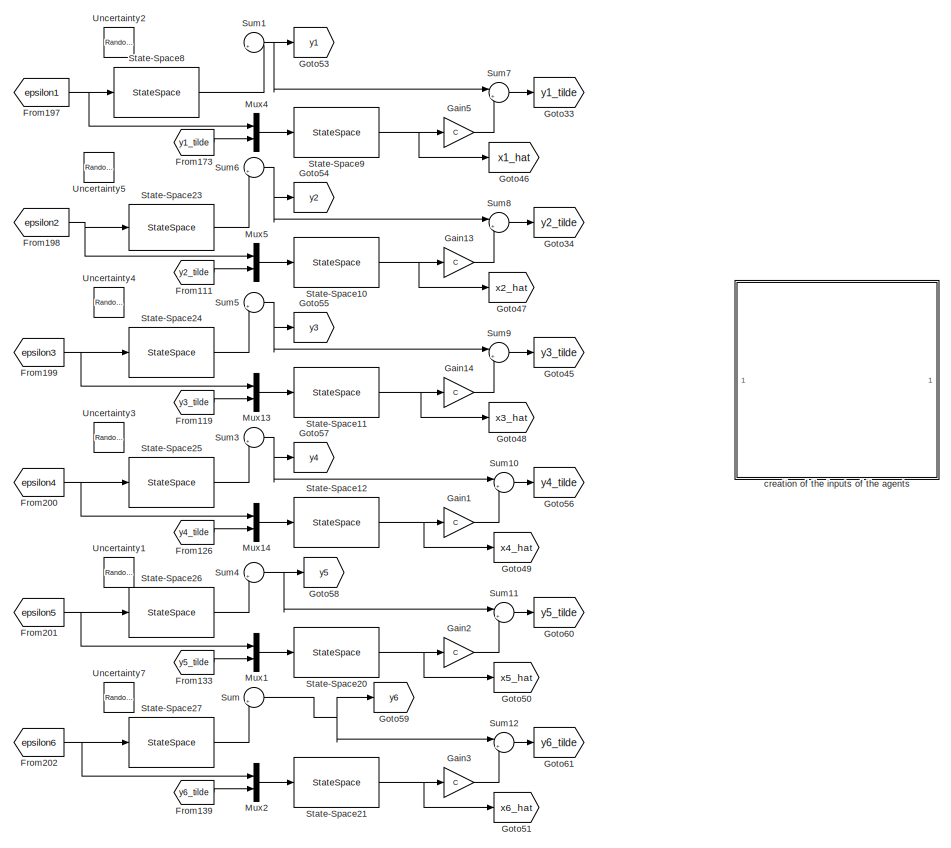
[diagram: root canvas - part 1/3, top center region]
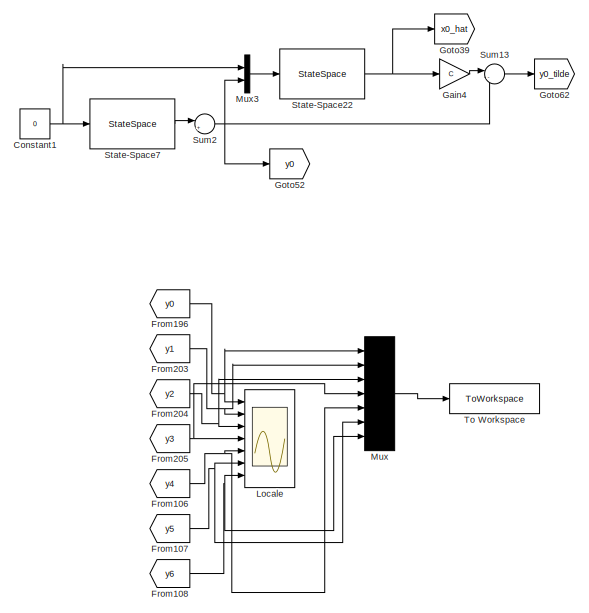
[diagram: root canvas - part 2/3, top left region]
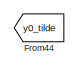
[diagram: root canvas - part 3/3, bottom right region]
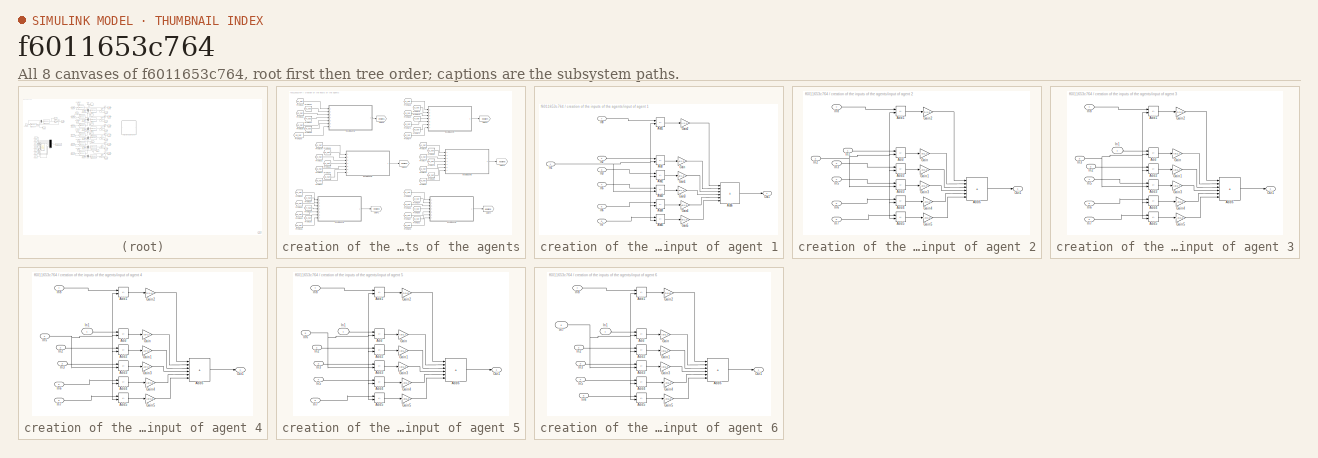
[diagram: thumbnail index - all 8 canvases of the model, root first then tree order]
MODEL slx_f6011653c764
KIND model
CONFIG AbsTol = auto
CONFIG EnableMultiTasking = off
CONFIG FixedStep = 0.0025
CONFIG MaxStep = auto
CONFIG MinStep = auto
CONFIG RelTol = 1e-3
CONFIG SampleTimeConstraint = Unconstrained
CONFIG SolverName = VariableStepAuto
CONFIG StartTime = 0.0
CONFIG StopTime = T_fin
BLOCK [Constant] Constant1
  Value = 0
BLOCK [From] From106
  GotoTag = y4
  TagVisibility = global
BLOCK [From] From107
  GotoTag = y5
  TagVisibility = global
BLOCK [From] From108
  GotoTag = y6
  TagVisibility = global
BLOCK [From] From111
  GotoTag = y2_tilde
  TagVisibility = global
BLOCK [From] From119
  GotoTag = y3_tilde
  TagVisibility = global
BLOCK [From] From126
  GotoTag = y4_tilde
  TagVisibility = global
BLOCK [From] From133
  GotoTag = y5_tilde
  TagVisibility = global
BLOCK [From] From139
  GotoTag = y6_tilde
  TagVisibility = global
BLOCK [From] From173
  GotoTag = y1_tilde
  TagVisibility = global
BLOCK [From] From196
  GotoTag = y0
  TagVisibility = global
BLOCK [From] From197
  GotoTag = epsilon1
  TagVisibility = global
BLOCK [From] From198
  GotoTag = epsilon2
  TagVisibility = global
BLOCK [From] From199
  GotoTag = epsilon3
  TagVisibility = global
BLOCK [From] From200
  GotoTag = epsilon4
  TagVisibility = global
BLOCK [From] From201
  GotoTag = epsilon5
  TagVisibility = global
BLOCK [From] From202
  GotoTag = epsilon6
  TagVisibility = global
BLOCK [From] From203
  GotoTag = y1
  TagVisibility = global
BLOCK [From] From204
  GotoTag = y2
  TagVisibility = global
BLOCK [From] From205
  GotoTag = y3
  TagVisibility = global
BLOCK [From] From44
  GotoTag = y0_tilde
  TagVisibility = global
BLOCK [Gain] Gain1
  Gain = C
  Multiplication = Matrix(K*u)
BLOCK [Gain] Gain13
  Gain = C
  Multiplication = Matrix(K*u)
BLOCK [Gain] Gain14
  Gain = C
  Multiplication = Matrix(K*u)
BLOCK [Gain] Gain2
  Gain = C
  Multiplication = Matrix(K*u)
BLOCK [Gain] Gain3
  Gain = C
  Multiplication = Matrix(K*u)
BLOCK [Gain] Gain4
  Gain = C
  Multiplication = Matrix(K*u)
BLOCK [Gain] Gain5
  Gain = C
  Multiplication = Matrix(K*u)
BLOCK [Goto] Goto33
  GotoTag = y1_tilde
  TagVisibility = global
BLOCK [Goto] Goto34
  GotoTag = y2_tilde
  TagVisibility = global
BLOCK [Goto] Goto39
  GotoTag = x0_hat
  TagVisibility = global
BLOCK [Goto] Goto45
  GotoTag = y3_tilde
  TagVisibility = global
BLOCK [Goto] Goto46
  GotoTag = x1_hat
  TagVisibility = global
BLOCK [Goto] Goto47
  GotoTag = x2_hat
  TagVisibility = global
BLOCK [Goto] Goto48
  GotoTag = x3_hat
  TagVisibility = global
BLOCK [Goto] Goto49
  GotoTag = x4_hat
  TagVisibility = global
BLOCK [Goto] Goto50
  GotoTag = x5_hat
  TagVisibility = global
BLOCK [Goto] Goto51
  GotoTag = x6_hat
  TagVisibility = global
BLOCK [Goto] Goto52
  GotoTag = y0
  TagVisibility = global
BLOCK [Goto] Goto53
  GotoTag = y1
  TagVisibility = global
BLOCK [Goto] Goto54
  GotoTag = y2
  TagVisibility = global
BLOCK [Goto] Goto55
  GotoTag = y3
  TagVisibility = global
BLOCK [Goto] Goto56
  GotoTag = y4_tilde
  TagVisibility = global
BLOCK [Goto] Goto57
  GotoTag = y4
  TagVisibility = global
BLOCK [Goto] Goto58
  GotoTag = y5
  TagVisibility = global
BLOCK [Goto] Goto59
  GotoTag = y6
  TagVisibility = global
BLOCK [Goto] Goto60
  GotoTag = y5_tilde
  TagVisibility = global
BLOCK [Goto] Goto61
  GotoTag = y6_tilde
  TagVisibility = global
BLOCK [Goto] Goto62
  GotoTag = y0_tilde
  TagVisibility = global
BLOCK [Scope] Locale
  Floating = off
  NumInputPorts = 7
  Ports = [7]
  ScopeSpecificationString = Simulink.scopes.TimeScopeBlockCfg('CurrentConfiguration', extmgr.ConfigurationSet(extmgr.Configuration('Core','General UI',true),extmgr.Configuration('Core','Source UI',true),extmgr.Configuration('Sources','WiredSimulink',true,'DataLoggingVariableName','ScopeData1'),extmgr.Configuration('Visuals','Time Domain',true,'SerializedDisplays',{struct('MinYLimReal','-3.08942','MaxYLimReal','7.80479','YLab...<+1676ch>
BLOCK [Mux] Mux
  DisplayOption = bar
  Inputs = 7
  Ports = [7, 1]
BLOCK [Mux] Mux1
  DisplayOption = bar
  Inputs = 2
  Ports = [2, 1]
BLOCK [Mux] Mux13
  DisplayOption = bar
  Inputs = 2
  Ports = [2, 1]
BLOCK [Mux] Mux14
  DisplayOption = bar
  Inputs = 2
  Ports = [2, 1]
BLOCK [Mux] Mux2
  DisplayOption = bar
  Inputs = 2
  Ports = [2, 1]
BLOCK [Mux] Mux3
  DisplayOption = bar
  Inputs = 2
  Ports = [2, 1]
BLOCK [Mux] Mux4
  DisplayOption = bar
  Inputs = 2
  Ports = [2, 1]
BLOCK [Mux] Mux5
  DisplayOption = bar
  Inputs = 2
  Ports = [2, 1]
BLOCK [StateSpace] State-Space10
  A = A
  B = [B*c*K -c*F2]
  C = eye(2)
  D = zeros(2,3)
  InitialCondition = zeros(1,2)
  Ports = [1, 1]
BLOCK [StateSpace] State-Space11
  A = A
  B = [B*c*K -c*F2]
  C = eye(2)
  D = zeros(2,3)
  InitialCondition = zeros(1,2)
  Ports = [1, 1]
BLOCK [StateSpace] State-Space12
  A = A
  B = [B*c*K -c*F2]
  C = eye(2)
  D = zeros(2,3)
  InitialCondition = zeros(1,2)
  Ports = [1, 1]
BLOCK [StateSpace] State-Space20
  A = A
  B = [B*c*K -c*F2]
  C = eye(2)
  D = zeros(2,3)
  InitialCondition = zeros(1,2)
  Ports = [1, 1]
BLOCK [StateSpace] State-Space21
  A = A
  B = [B*c*K -c*F2]
  C = eye(2)
  D = zeros(2,3)
  InitialCondition = zeros(1,2)
  Ports = [1, 1]
BLOCK [StateSpace] State-Space22
  A = A - L_leader*C
  B = [B L_leader]
  C = eye(2)
  D = zeros(2,2)
  InitialCondition = zeros(1,2)
  Ports = [1, 1]
BLOCK [StateSpace] State-Space23
  A = A
  B = B*c*K
  C = C
  D = D_
  InitialCondition = [0 2/800]'
  Ports = [1, 1]
BLOCK [StateSpace] State-Space24
  A = A
  B = B*c*K
  C = C
  D = D_
  InitialCondition = [-1/C(1) -1/800]
  Ports = [1, 1]
BLOCK [StateSpace] State-Space25
  A = A
  B = B*c*K
  C = C
  D = D_
  InitialCondition = [3/C(1) -3/800]'
  Ports = [1, 1]
BLOCK [StateSpace] State-Space26
  A = A
  B = B*c*K
  C = C
  D = D_
  InitialCondition = [2/C(1) 4/800]'
  Ports = [1, 1]
BLOCK [StateSpace] State-Space27
  A = A
  B = B*c*K
  C = C
  D = D_
  InitialCondition = [-2/C(1) 0]'
  Ports = [1, 1]
BLOCK [StateSpace] State-Space7
  A = A
  B = B
  C = C
  D = 0
  InitialCondition = X0
  Ports = [1, 1]
BLOCK [StateSpace] State-Space8
  A = A
  B = B*c*K
  C = C
  D = D_
  InitialCondition = [2/C(1) 1/800]'
  Ports = [1, 1]
BLOCK [StateSpace] State-Space9
  A = A
  B = [B*c*K -c*F2]
  C = eye(2)
  D = zeros(2,3)
  InitialCondition = zeros(1,2)
  Ports = [1, 1]
BLOCK [Sum] Sum
  Inputs = |++
  Ports = [2, 1]
BLOCK [Sum] Sum1
  Inputs = |++
  Ports = [2, 1]
BLOCK [Sum] Sum10
  Inputs = |+-
  Ports = [2, 1]
BLOCK [Sum] Sum11
  Inputs = |+-
  Ports = [2, 1]
BLOCK [Sum] Sum12
  Inputs = |+-
  Ports = [2, 1]
BLOCK [Sum] Sum13
  Inputs = |-+
  Ports = [2, 1]
BLOCK [Sum] Sum2
  Inputs = |++
  Ports = [2, 1]
BLOCK [Sum] Sum3
  Inputs = |++
  Ports = [2, 1]
BLOCK [Sum] Sum4
  Inputs = |++
  Ports = [2, 1]
BLOCK [Sum] Sum5
  Inputs = |++
  Ports = [2, 1]
BLOCK [Sum] Sum6
  Inputs = |++
  Ports = [2, 1]
BLOCK [Sum] Sum7
  Inputs = |+-
  Ports = [2, 1]
BLOCK [Sum] Sum8
  Inputs = |+-
  Ports = [2, 1]
BLOCK [Sum] Sum9
  Inputs = |+-
  Ports = [2, 1]
BLOCK [ToWorkspace] To Workspace
  FixptAsFi = on
  MaxDataPoints = inf
  Ports = [1]
  SampleTime = -1
  SaveFormat = Timeseries
  VariableName = local
BLOCK [RandomNumber] Uncertainty1
  Mean = zeros(1,1)
  NameLocation = top
  SampleTime = 0.1
  Seed = 1
  Variance = 0.1
BLOCK [RandomNumber] Uncertainty2
  NameLocation = top
  SampleTime = 0.2
  Seed = 2
BLOCK [RandomNumber] Uncertainty3
  Mean = zeros(1,1)
  NameLocation = top
  SampleTime = 0.1
  Seed = 3
  Variance = 0.7
BLOCK [RandomNumber] Uncertainty4
  Mean = zeros(1,1)
  NameLocation = top
  SampleTime = 0.1
  Seed = 7
  Variance = 0.2
BLOCK [RandomNumber] Uncertainty5
  Mean = zeros(1,1)
  NameLocation = top
  SampleTime = 0.1
  Seed = 7
  Variance = 0.5
BLOCK [RandomNumber] Uncertainty7
  Mean = zeros(1,1)
  NameLocation = top
  SampleTime = 0.1
  Seed = 3
  Variance = 0.4
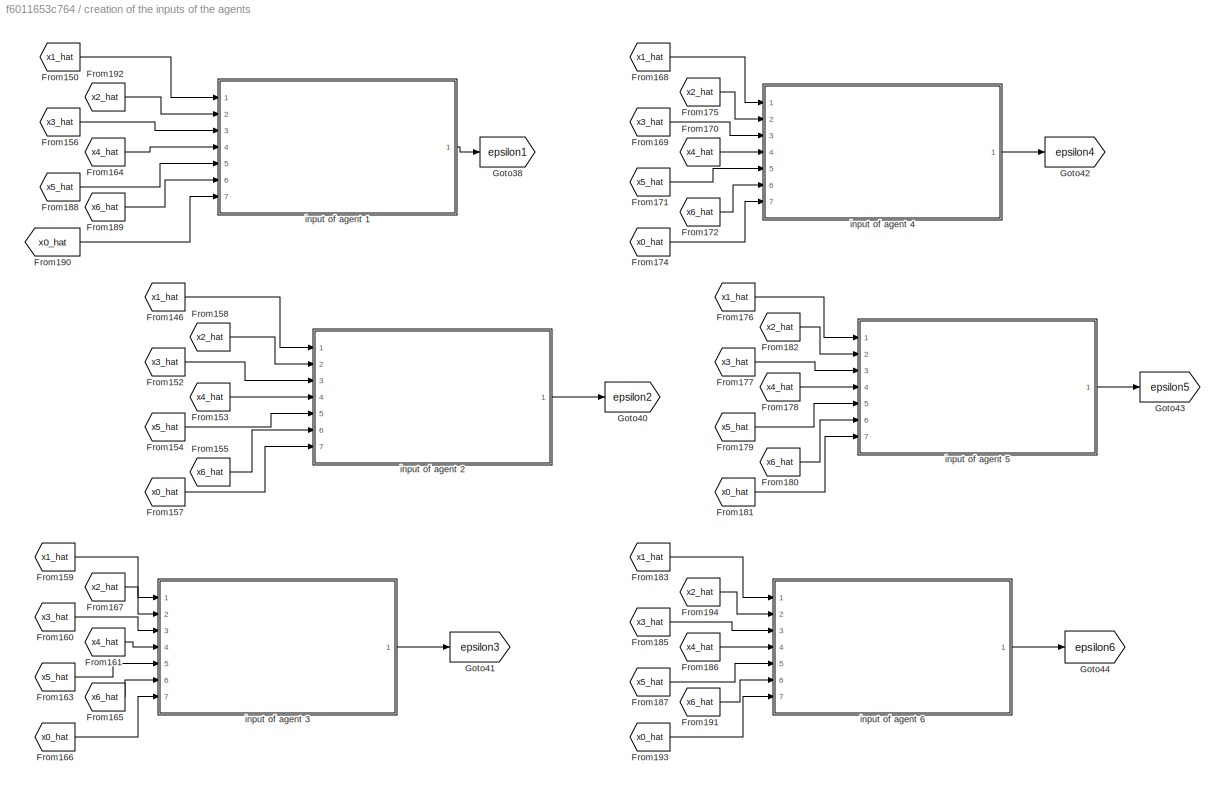
BLOCK [SubSystem] creation of the inputs of the agents
  Ports = []
BLOCK [From] creation of the inputs of the agents/From146
  GotoTag = x1_hat
  TagVisibility = global
BLOCK [From] creation of the inputs of the agents/From150
  GotoTag = x1_hat
  TagVisibility = global
BLOCK [From] creation of the inputs of the agents/From152
  GotoTag = x3_hat
  TagVisibility = global
BLOCK [From] creation of the inputs of the agents/From153
  GotoTag = x4_hat
  TagVisibility = global
BLOCK [From] creation of the inputs of the agents/From154
  GotoTag = x5_hat
  TagVisibility = global
BLOCK [From] creation of the inputs of the agents/From155
  GotoTag = x6_hat
  TagVisibility = global
BLOCK [From] creation of the inputs of the agents/From156
  GotoTag = x3_hat
  TagVisibility = global
BLOCK [From] creation of the inputs of the agents/From157
  GotoTag = x0_hat
  TagVisibility = global
BLOCK [From] creation of the inputs of the agents/From158
  GotoTag = x2_hat
  TagVisibility = global
BLOCK [From] creation of the inputs of the agents/From159
  GotoTag = x1_hat
  TagVisibility = global
BLOCK [From] creation of the inputs of the agents/From160
  GotoTag = x3_hat
  TagVisibility = global
BLOCK [From] creation of the inputs of the agents/From161
  GotoTag = x4_hat
  TagVisibility = global
BLOCK [From] creation of the inputs of the agents/From163
  GotoTag = x5_hat
  TagVisibility = global
BLOCK [From] creation of the inputs of the agents/From164
  GotoTag = x4_hat
  TagVisibility = global
BLOCK [From] creation of the inputs of the agents/From165
  GotoTag = x6_hat
  TagVisibility = global
BLOCK [From] creation of the inputs of the agents/From166
  GotoTag = x0_hat
  TagVisibility = global
BLOCK [From] creation of the inputs of the agents/From167
  GotoTag = x2_hat
  TagVisibility = global
BLOCK [From] creation of the inputs of the agents/From168
  GotoTag = x1_hat
  TagVisibility = global
BLOCK [From] creation of the inputs of the agents/From169
  GotoTag = x3_hat
  TagVisibility = global
BLOCK [From] creation of the inputs of the agents/From170
  GotoTag = x4_hat
  TagVisibility = global
BLOCK [From] creation of the inputs of the agents/From171
  GotoTag = x5_hat
  TagVisibility = global
BLOCK [From] creation of the inputs of the agents/From172
  GotoTag = x6_hat
  TagVisibility = global
BLOCK [From] creation of the inputs of the agents/From174
  GotoTag = x0_hat
  TagVisibility = global
BLOCK [From] creation of the inputs of the agents/From175
  GotoTag = x2_hat
  TagVisibility = global
BLOCK [From] creation of the inputs of the agents/From176
  GotoTag = x1_hat
  TagVisibility = global
BLOCK [From] creation of the inputs of the agents/From177
  GotoTag = x3_hat
  TagVisibility = global
BLOCK [From] creation of the inputs of the agents/From178
  GotoTag = x4_hat
  TagVisibility = global
BLOCK [From] creation of the inputs of the agents/From179
  GotoTag = x5_hat
  TagVisibility = global
BLOCK [From] creation of the inputs of the agents/From180
  GotoTag = x6_hat
  TagVisibility = global
BLOCK [From] creation of the inputs of the agents/From181
  GotoTag = x0_hat
  TagVisibility = global
BLOCK [From] creation of the inputs of the agents/From182
  GotoTag = x2_hat
  TagVisibility = global
BLOCK [From] creation of the inputs of the agents/From183
  GotoTag = x1_hat
  TagVisibility = global
BLOCK [From] creation of the inputs of the agents/From185
  GotoTag = x3_hat
  TagVisibility = global
BLOCK [From] creation of the inputs of the agents/From186
  GotoTag = x4_hat
  TagVisibility = global
BLOCK [From] creation of the inputs of the agents/From187
  GotoTag = x5_hat
  TagVisibility = global
BLOCK [From] creation of the inputs of the agents/From188
  GotoTag = x5_hat
  TagVisibility = global
BLOCK [From] creation of the inputs of the agents/From189
  GotoTag = x6_hat
  TagVisibility = global
BLOCK [From] creation of the inputs of the agents/From190
  GotoTag = x0_hat
  TagVisibility = global
BLOCK [From] creation of the inputs of the agents/From191
  GotoTag = x6_hat
  TagVisibility = global
BLOCK [From] creation of the inputs of the agents/From192
  GotoTag = x2_hat
  TagVisibility = global
BLOCK [From] creation of the inputs of the agents/From193
  GotoTag = x0_hat
  TagVisibility = global
BLOCK [From] creation of the inputs of the agents/From194
  GotoTag = x2_hat
  TagVisibility = global
BLOCK [Goto] creation of the inputs of the agents/Goto38
  GotoTag = epsilon1
  TagVisibility = global
BLOCK [Goto] creation of the inputs of the agents/Goto40
  GotoTag = epsilon2
  TagVisibility = global
BLOCK [Goto] creation of the inputs of the agents/Goto41
  GotoTag = epsilon3
  TagVisibility = global
BLOCK [Goto] creation of the inputs of the agents/Goto42
  GotoTag = epsilon4
  TagVisibility = global
BLOCK [Goto] creation of the inputs of the agents/Goto43
  GotoTag = epsilon5
  TagVisibility = global
BLOCK [Goto] creation of the inputs of the agents/Goto44
  GotoTag = epsilon6
  TagVisibility = global
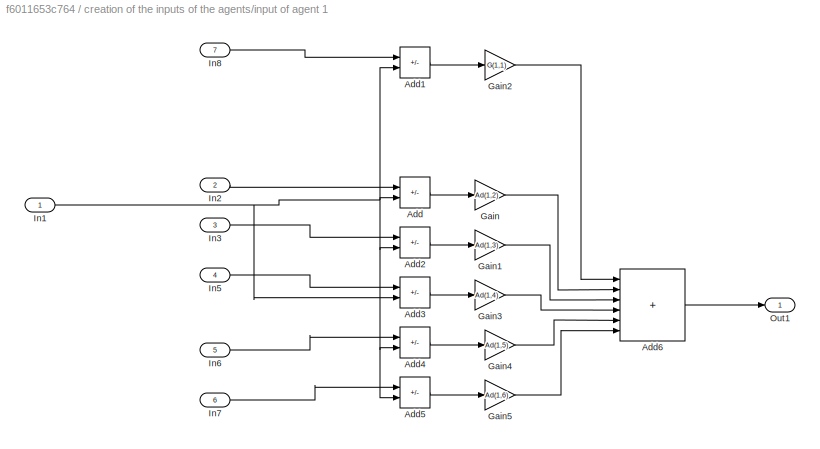
BLOCK [SubSystem] creation of the inputs of the agents/input of agent 1
  Ports = [7, 1]
BLOCK [Sum] creation of the inputs of the agents/input of agent 1/Add
  IconShape = rectangular
  Inputs = +-
  Ports = [2, 1]
BLOCK [Sum] creation of the inputs of the agents/input of agent 1/Add1
  IconShape = rectangular
  Inputs = +-
  Ports = [2, 1]
BLOCK [Sum] creation of the inputs of the agents/input of agent 1/Add2
  IconShape = rectangular
  Inputs = +-
  Ports = [2, 1]
BLOCK [Sum] creation of the inputs of the agents/input of agent 1/Add3
  IconShape = rectangular
  Inputs = +-
  Ports = [2, 1]
BLOCK [Sum] creation of the inputs of the agents/input of agent 1/Add4
  IconShape = rectangular
  Inputs = +-
  Ports = [2, 1]
BLOCK [Sum] creation of the inputs of the agents/input of agent 1/Add5
  IconShape = rectangular
  Inputs = +-
  Ports = [2, 1]
BLOCK [Sum] creation of the inputs of the agents/input of agent 1/Add6
  IconShape = rectangular
  Inputs = ++++++
  Ports = [6, 1]
BLOCK [Gain] creation of the inputs of the agents/input of agent 1/Gain
  Gain = Ad(1,2)
BLOCK [Gain] creation of the inputs of the agents/input of agent 1/Gain1
  Gain = Ad(1,3)
BLOCK [Gain] creation of the inputs of the agents/input of agent 1/Gain2
  Gain = G(1,1)
BLOCK [Gain] creation of the inputs of the agents/input of agent 1/Gain3
  Gain = Ad(1,4)
BLOCK [Gain] creation of the inputs of the agents/input of agent 1/Gain4
  Gain = Ad(1,5)
BLOCK [Gain] creation of the inputs of the agents/input of agent 1/Gain5
  Gain = Ad(1,6)
BLOCK [Inport] creation of the inputs of the agents/input of agent 1/In1
BLOCK [Inport] creation of the inputs of the agents/input of agent 1/In2
  Port = 2
BLOCK [Inport] creation of the inputs of the agents/input of agent 1/In3
  Port = 3
BLOCK [Inport] creation of the inputs of the agents/input of agent 1/In5
  Port = 4
BLOCK [Inport] creation of the inputs of the agents/input of agent 1/In6
  Port = 5
BLOCK [Inport] creation of the inputs of the agents/input of agent 1/In7
  Port = 6
BLOCK [Inport] creation of the inputs of the agents/input of agent 1/In8
  Port = 7
BLOCK [Outport] creation of the inputs of the agents/input of agent 1/Out1
BLOCK [SubSystem] creation of the inputs of the agents/input of agent 2
  Ports = [7, 1]
BLOCK [Sum] creation of the inputs of the agents/input of agent 2/Add
  IconShape = rectangular
  Inputs = +-
  Ports = [2, 1]
BLOCK [Sum] creation of the inputs of the agents/input of agent 2/Add1
  IconShape = rectangular
  Inputs = +-
  Ports = [2, 1]
BLOCK [Sum] creation of the inputs of the agents/input of agent 2/Add2
  IconShape = rectangular
  Inputs = +-
  Ports = [2, 1]
BLOCK [Sum] creation of the inputs of the agents/input of agent 2/Add3
  IconShape = rectangular
  Inputs = +-
  Ports = [2, 1]
BLOCK [Sum] creation of the inputs of the agents/input of agent 2/Add4
  IconShape = rectangular
  Inputs = +-
  Ports = [2, 1]
BLOCK [Sum] creation of the inputs of the agents/input of agent 2/Add5
  IconShape = rectangular
  Inputs = +-
  Ports = [2, 1]
BLOCK [Sum] creation of the inputs of the agents/input of agent 2/Add6
  IconShape = rectangular
  Inputs = ++++++
  Ports = [6, 1]
BLOCK [Gain] creation of the inputs of the agents/input of agent 2/Gain
  Gain = Ad(2,1)
BLOCK [Gain] creation of the inputs of the agents/input of agent 2/Gain1
  Gain = Ad(2,3)
BLOCK [Gain] creation of the inputs of the agents/input of agent 2/Gain2
  Gain = G(2,2)
BLOCK [Gain] creation of the inputs of the agents/input of agent 2/Gain3
  Gain = Ad(2,4)
BLOCK [Gain] creation of the inputs of the agents/input of agent 2/Gain4
  Gain = Ad(2,5)
BLOCK [Gain] creation of the inputs of the agents/input of agent 2/Gain5
  Gain = Ad(2,6)
BLOCK [Inport] creation of the inputs of the agents/input of agent 2/In1
BLOCK [Inport] creation of the inputs of the agents/input of agent 2/In2
  Port = 2
BLOCK [Inport] creation of the inputs of the agents/input of agent 2/In3
  Port = 3
BLOCK [Inport] creation of the inputs of the agents/input of agent 2/In5
  Port = 4
BLOCK [Inport] creation of the inputs of the agents/input of agent 2/In6
  Port = 5
BLOCK [Inport] creation of the inputs of the agents/input of agent 2/In7
  Port = 6
BLOCK [Inport] creation of the inputs of the agents/input of agent 2/In8
  Port = 7
BLOCK [Outport] creation of the inputs of the agents/input of agent 2/Out1
BLOCK [SubSystem] creation of the inputs of the agents/input of agent 3
  Ports = [7, 1]
BLOCK [Sum] creation of the inputs of the agents/input of agent 3/Add
  IconShape = rectangular
  Inputs = +-
  Ports = [2, 1]
BLOCK [Sum] creation of the inputs of the agents/input of agent 3/Add1
  IconShape = rectangular
  Inputs = +-
  Ports = [2, 1]
BLOCK [Sum] creation of the inputs of the agents/input of agent 3/Add2
  IconShape = rectangular
  Inputs = +-
  Ports = [2, 1]
BLOCK [Sum] creation of the inputs of the agents/input of agent 3/Add3
  IconShape = rectangular
  Inputs = +-
  Ports = [2, 1]
BLOCK [Sum] creation of the inputs of the agents/input of agent 3/Add4
  IconShape = rectangular
  Inputs = +-
  Ports = [2, 1]
BLOCK [Sum] creation of the inputs of the agents/input of agent 3/Add5
  IconShape = rectangular
  Inputs = +-
  Ports = [2, 1]
BLOCK [Sum] creation of the inputs of the agents/input of agent 3/Add6
  IconShape = rectangular
  Inputs = ++++++
  Ports = [6, 1]
BLOCK [Gain] creation of the inputs of the agents/input of agent 3/Gain
  Gain = Ad(3,1)
BLOCK [Gain] creation of the inputs of the agents/input of agent 3/Gain1
  Gain = Ad(3,2)
BLOCK [Gain] creation of the inputs of the agents/input of agent 3/Gain2
  Gain = G(3,3)
BLOCK [Gain] creation of the inputs of the agents/input of agent 3/Gain3
  Gain = Ad(3,4)
BLOCK [Gain] creation of the inputs of the agents/input of agent 3/Gain4
  Gain = Ad(3,5)
BLOCK [Gain] creation of the inputs of the agents/input of agent 3/Gain5
  Gain = Ad(3,6)
BLOCK [Inport] creation of the inputs of the agents/input of agent 3/In1
BLOCK [Inport] creation of the inputs of the agents/input of agent 3/In2
  Port = 2
BLOCK [Inport] creation of the inputs of the agents/input of agent 3/In3
  Port = 3
BLOCK [Inport] creation of the inputs of the agents/input of agent 3/In5
  Port = 4
BLOCK [Inport] creation of the inputs of the agents/input of agent 3/In6
  Port = 5
BLOCK [Inport] creation of the inputs of the agents/input of agent 3/In7
  Port = 6
BLOCK [Inport] creation of the inputs of the agents/input of agent 3/In8
  Port = 7
BLOCK [Outport] creation of the inputs of the agents/input of agent 3/Out1
BLOCK [SubSystem] creation of the inputs of the agents/input of agent 4
  Ports = [7, 1]
BLOCK [Sum] creation of the inputs of the agents/input of agent 4/Add
  IconShape = rectangular
  Inputs = +-
  Ports = [2, 1]
BLOCK [Sum] creation of the inputs of the agents/input of agent 4/Add1
  IconShape = rectangular
  Inputs = +-
  Ports = [2, 1]
BLOCK [Sum] creation of the inputs of the agents/input of agent 4/Add2
  IconShape = rectangular
  Inputs = +-
  Ports = [2, 1]
BLOCK [Sum] creation of the inputs of the agents/input of agent 4/Add3
  IconShape = rectangular
  Inputs = +-
  Ports = [2, 1]
BLOCK [Sum] creation of the inputs of the agents/input of agent 4/Add4
  IconShape = rectangular
  Inputs = +-
  Ports = [2, 1]
BLOCK [Sum] creation of the inputs of the agents/input of agent 4/Add5
  IconShape = rectangular
  Inputs = +-
  Ports = [2, 1]
BLOCK [Sum] creation of the inputs of the agents/input of agent 4/Add6
  IconShape = rectangular
  Inputs = ++++++
  Ports = [6, 1]
BLOCK [Gain] creation of the inputs of the agents/input of agent 4/Gain
  Gain = Ad(4,1)
BLOCK [Gain] creation of the inputs of the agents/input of agent 4/Gain1
  Gain = Ad(4,2)
BLOCK [Gain] creation of the inputs of the agents/input of agent 4/Gain2
  Gain = G(4,4)
BLOCK [Gain] creation of the inputs of the agents/input of agent 4/Gain3
  Gain = Ad(4,3)
BLOCK [Gain] creation of the inputs of the agents/input of agent 4/Gain4
  Gain = Ad(4,5)
BLOCK [Gain] creation of the inputs of the agents/input of agent 4/Gain5
  Gain = Ad(4,6)
BLOCK [Inport] creation of the inputs of the agents/input of agent 4/In1
BLOCK [Inport] creation of the inputs of the agents/input of agent 4/In2
  Port = 2
BLOCK [Inport] creation of the inputs of the agents/input of agent 4/In3
  Port = 3
BLOCK [Inport] creation of the inputs of the agents/input of agent 4/In5
  Port = 4
BLOCK [Inport] creation of the inputs of the agents/input of agent 4/In6
  Port = 5
BLOCK [Inport] creation of the inputs of the agents/input of agent 4/In7
  Port = 6
BLOCK [Inport] creation of the inputs of the agents/input of agent 4/In8
  Port = 7
BLOCK [Outport] creation of the inputs of the agents/input of agent 4/Out1
BLOCK [SubSystem] creation of the inputs of the agents/input of agent 5
  Ports = [7, 1]
BLOCK [Sum] creation of the inputs of the agents/input of agent 5/Add
  IconShape = rectangular
  Inputs = +-
  Ports = [2, 1]
BLOCK [Sum] creation of the inputs of the agents/input of agent 5/Add1
  IconShape = rectangular
  Inputs = +-
  Ports = [2, 1]
BLOCK [Sum] creation of the inputs of the agents/input of agent 5/Add2
  IconShape = rectangular
  Inputs = +-
  Ports = [2, 1]
BLOCK [Sum] creation of the inputs of the agents/input of agent 5/Add3
  IconShape = rectangular
  Inputs = +-
  Ports = [2, 1]
BLOCK [Sum] creation of the inputs of the agents/input of agent 5/Add4
  IconShape = rectangular
  Inputs = +-
  Ports = [2, 1]
BLOCK [Sum] creation of the inputs of the agents/input of agent 5/Add5
  IconShape = rectangular
  Inputs = +-
  Ports = [2, 1]
BLOCK [Sum] creation of the inputs of the agents/input of agent 5/Add6
  IconShape = rectangular
  Inputs = ++++++
  Ports = [6, 1]
BLOCK [Gain] creation of the inputs of the agents/input of agent 5/Gain
  Gain = Ad(5,1)
BLOCK [Gain] creation of the inputs of the agents/input of agent 5/Gain1
  Gain = Ad(5,2)
BLOCK [Gain] creation of the inputs of the agents/input of agent 5/Gain2
  Gain = G(5,5)
BLOCK [Gain] creation of the inputs of the agents/input of agent 5/Gain3
  Gain = Ad(5,3)
BLOCK [Gain] creation of the inputs of the agents/input of agent 5/Gain4
  Gain = Ad(5,4)
BLOCK [Gain] creation of the inputs of the agents/input of agent 5/Gain5
  Gain = Ad(5,6)
BLOCK [Inport] creation of the inputs of the agents/input of agent 5/In1
BLOCK [Inport] creation of the inputs of the agents/input of agent 5/In2
  Port = 2
BLOCK [Inport] creation of the inputs of the agents/input of agent 5/In3
  Port = 3
BLOCK [Inport] creation of the inputs of the agents/input of agent 5/In5
  Port = 4
BLOCK [Inport] creation of the inputs of the agents/input of agent 5/In6
  Port = 5
BLOCK [Inport] creation of the inputs of the agents/input of agent 5/In7
  Port = 6
BLOCK [Inport] creation of the inputs of the agents/input of agent 5/In8
  Port = 7
BLOCK [Outport] creation of the inputs of the agents/input of agent 5/Out1
BLOCK [SubSystem] creation of the inputs of the agents/input of agent 6
  Ports = [7, 1]
BLOCK [Sum] creation of the inputs of the agents/input of agent 6/Add
  IconShape = rectangular
  Inputs = +-
  Ports = [2, 1]
BLOCK [Sum] creation of the inputs of the agents/input of agent 6/Add1
  IconShape = rectangular
  Inputs = +-
  Ports = [2, 1]
BLOCK [Sum] creation of the inputs of the agents/input of agent 6/Add2
  IconShape = rectangular
  Inputs = +-
  Ports = [2, 1]
BLOCK [Sum] creation of the inputs of the agents/input of agent 6/Add3
  IconShape = rectangular
  Inputs = +-
  Ports = [2, 1]
BLOCK [Sum] creation of the inputs of the agents/input of agent 6/Add4
  IconShape = rectangular
  Inputs = +-
  Ports = [2, 1]
BLOCK [Sum] creation of the inputs of the agents/input of agent 6/Add5
  IconShape = rectangular
  Inputs = +-
  Ports = [2, 1]
BLOCK [Sum] creation of the inputs of the agents/input of agent 6/Add6
  IconShape = rectangular
  Inputs = ++++++
  Ports = [6, 1]
BLOCK [Gain] creation of the inputs of the agents/input of agent 6/Gain
  Gain = Ad(6,1)
BLOCK [Gain] creation of the inputs of the agents/input of agent 6/Gain1
  Gain = Ad(6,2)
BLOCK [Gain] creation of the inputs of the agents/input of agent 6/Gain2
  Gain = G(6,6)
BLOCK [Gain] creation of the inputs of the agents/input of agent 6/Gain3
  Gain = Ad(6,3)
BLOCK [Gain] creation of the inputs of the agents/input of agent 6/Gain4
  Gain = Ad(6,4)
BLOCK [Gain] creation of the inputs of the agents/input of agent 6/Gain5
  Gain = Ad(6,5)
BLOCK [Inport] creation of the inputs of the agents/input of agent 6/In1
BLOCK [Inport] creation of the inputs of the agents/input of agent 6/In2
  Port = 2
BLOCK [Inport] creation of the inputs of the agents/input of agent 6/In3
  Port = 3
BLOCK [Inport] creation of the inputs of the agents/input of agent 6/In5
  Port = 4
BLOCK [Inport] creation of the inputs of the agents/input of agent 6/In6
  Port = 5
BLOCK [Inport] creation of the inputs of the agents/input of agent 6/In7
  Port = 6
BLOCK [Inport] creation of the inputs of the agents/input of agent 6/In8
  Port = 7
BLOCK [Outport] creation of the inputs of the agents/input of agent 6/Out1
NET Constant1:1 -> Mux3:1, State-Space7:1
NET From106:1 -> Locale:5, Mux:5
NET From107:1 -> Locale:6, Mux:6
NET From108:1 -> Locale:7, Mux:7
LINE From111:1 -> Mux5:2
LINE From119:1 -> Mux13:2
LINE From126:1 -> Mux14:2
LINE From133:1 -> Mux1:2
LINE From139:1 -> Mux2:2
LINE From173:1 -> Mux4:2
NET From196:1 -> Locale:1, Mux:1
NET From197:1 -> Mux4:1, State-Space8:1
NET From198:1 -> Mux5:1, State-Space23:1
NET From199:1 -> Mux13:1, State-Space24:1
NET From200:1 -> Mux14:1, State-Space25:1
NET From201:1 -> Mux1:1, State-Space26:1
NET From202:1 -> Mux2:1, State-Space27:1
NET From203:1 -> Locale:2, Mux:2
NET From204:1 -> Locale:3, Mux:3
NET From205:1 -> Locale:4, Mux:4
LINE Gain13:1 -> Sum8:2
LINE Gain14:1 -> Sum9:2
LINE Gain1:1 -> Sum10:2
LINE Gain2:1 -> Sum11:2
LINE Gain3:1 -> Sum12:2
LINE Gain4:1 -> Sum13:1
LINE Gain5:1 -> Sum7:2
LINE Mux13:1 -> State-Space11:1
LINE Mux14:1 -> State-Space12:1
LINE Mux1:1 -> State-Space20:1
LINE Mux2:1 -> State-Space21:1
LINE Mux3:1 -> State-Space22:1
LINE Mux4:1 -> State-Space9:1
LINE Mux5:1 -> State-Space10:1
LINE Mux:1 -> To Workspace:1
NET State-Space10:1 -> Gain13:1, Goto47:1
NET State-Space11:1 -> Gain14:1, Goto48:1
NET State-Space12:1 -> Gain1:1, Goto49:1
NET State-Space20:1 -> Gain2:1, Goto50:1
NET State-Space21:1 -> Gain3:1, Goto51:1
NET State-Space22:1 -> Gain4:1, Goto39:1
LINE State-Space23:1 -> Sum6:2
LINE State-Space24:1 -> Sum5:2
LINE State-Space25:1 -> Sum3:2
LINE State-Space26:1 -> Sum4:2
LINE State-Space27:1 -> Sum:2
LINE State-Space7:1 -> Sum2:1
LINE State-Space8:1 -> Sum1:2
NET State-Space9:1 -> Gain5:1, Goto46:1
LINE Sum10:1 -> Goto56:1
LINE Sum11:1 -> Goto60:1
LINE Sum12:1 -> Goto61:1
LINE Sum13:1 -> Goto62:1
NET Sum1:1 -> Goto53:1, Sum7:1
NET Sum2:1 -> Goto52:1, Mux3:2, Sum13:2
NET Sum3:1 -> Goto57:1, Sum10:1
NET Sum4:1 -> Goto58:1, Sum11:1
NET Sum5:1 -> Goto55:1, Sum9:1
NET Sum6:1 -> Goto54:1, Sum8:1
LINE Sum7:1 -> Goto33:1
LINE Sum8:1 -> Goto34:1
LINE Sum9:1 -> Goto45:1
NET Sum:1 -> Goto59:1, Sum12:1
LINE creation of the inputs of the agents/From146:1 -> creation of the inputs of the agents/input of agent 2:1
LINE creation of the inputs of the agents/From150:1 -> creation of the inputs of the agents/input of agent 1:1
LINE creation of the inputs of the agents/From152:1 -> creation of the inputs of the agents/input of agent 2:3
LINE creation of the inputs of the agents/From153:1 -> creation of the inputs of the agents/input of agent 2:4
LINE creation of the inputs of the agents/From154:1 -> creation of the inputs of the agents/input of agent 2:5
LINE creation of the inputs of the agents/From155:1 -> creation of the inputs of the agents/input of agent 2:6
LINE creation of the inputs of the agents/From156:1 -> creation of the inputs of the agents/input of agent 1:3
LINE creation of the inputs of the agents/From157:1 -> creation of the inputs of the agents/input of agent 2:7
LINE creation of the inputs of the agents/From158:1 -> creation of the inputs of the agents/input of agent 2:2
LINE creation of the inputs of the agents/From159:1 -> creation of the inputs of the agents/input of agent 3:1
LINE creation of the inputs of the agents/From160:1 -> creation of the inputs of the agents/input of agent 3:3
LINE creation of the inputs of the agents/From161:1 -> creation of the inputs of the agents/input of agent 3:4
LINE creation of the inputs of the agents/From163:1 -> creation of the inputs of the agents/input of agent 3:5
LINE creation of the inputs of the agents/From164:1 -> creation of the inputs of the agents/input of agent 1:4
LINE creation of the inputs of the agents/From165:1 -> creation of the inputs of the agents/input of agent 3:6
LINE creation of the inputs of the agents/From166:1 -> creation of the inputs of the agents/input of agent 3:7
LINE creation of the inputs of the agents/From167:1 -> creation of the inputs of the agents/input of agent 3:2
LINE creation of the inputs of the agents/From168:1 -> creation of the inputs of the agents/input of agent 4:1
LINE creation of the inputs of the agents/From169:1 -> creation of the inputs of the agents/input of agent 4:3
LINE creation of the inputs of the agents/From170:1 -> creation of the inputs of the agents/input of agent 4:4
LINE creation of the inputs of the agents/From171:1 -> creation of the inputs of the agents/input of agent 4:5
LINE creation of the inputs of the agents/From172:1 -> creation of the inputs of the agents/input of agent 4:6
LINE creation of the inputs of the agents/From174:1 -> creation of the inputs of the agents/input of agent 4:7
LINE creation of the inputs of the agents/From175:1 -> creation of the inputs of the agents/input of agent 4:2
LINE creation of the inputs of the agents/From176:1 -> creation of the inputs of the agents/input of agent 5:1
LINE creation of the inputs of the agents/From177:1 -> creation of the inputs of the agents/input of agent 5:3
LINE creation of the inputs of the agents/From178:1 -> creation of the inputs of the agents/input of agent 5:4
LINE creation of the inputs of the agents/From179:1 -> creation of the inputs of the agents/input of agent 5:5
LINE creation of the inputs of the agents/From180:1 -> creation of the inputs of the agents/input of agent 5:6
LINE creation of the inputs of the agents/From181:1 -> creation of the inputs of the agents/input of agent 5:7
LINE creation of the inputs of the agents/From182:1 -> creation of the inputs of the agents/input of agent 5:2
LINE creation of the inputs of the agents/From183:1 -> creation of the inputs of the agents/input of agent 6:1
LINE creation of the inputs of the agents/From185:1 -> creation of the inputs of the agents/input of agent 6:3
LINE creation of the inputs of the agents/From186:1 -> creation of the inputs of the agents/input of agent 6:4
LINE creation of the inputs of the agents/From187:1 -> creation of the inputs of the agents/input of agent 6:5
LINE creation of the inputs of the agents/From188:1 -> creation of the inputs of the agents/input of agent 1:5
LINE creation of the inputs of the agents/From189:1 -> creation of the inputs of the agents/input of agent 1:6
LINE creation of the inputs of the agents/From190:1 -> creation of the inputs of the agents/input of agent 1:7
LINE creation of the inputs of the agents/From191:1 -> creation of the inputs of the agents/input of agent 6:6
LINE creation of the inputs of the agents/From192:1 -> creation of the inputs of the agents/input of agent 1:2
LINE creation of the inputs of the agents/From193:1 -> creation of the inputs of the agents/input of agent 6:7
LINE creation of the inputs of the agents/From194:1 -> creation of the inputs of the agents/input of agent 6:2
LINE creation of the inputs of the agents/input of agent 1/Add1:1 -> creation of the inputs of the agents/input of agent 1/Gain2:1
LINE creation of the inputs of the agents/input of agent 1/Add2:1 -> creation of the inputs of the agents/input of agent 1/Gain1:1
LINE creation of the inputs of the agents/input of agent 1/Add3:1 -> creation of the inputs of the agents/input of agent 1/Gain3:1
LINE creation of the inputs of the agents/input of agent 1/Add4:1 -> creation of the inputs of the agents/input of agent 1/Gain4:1
LINE creation of the inputs of the agents/input of agent 1/Add5:1 -> creation of the inputs of the agents/input of agent 1/Gain5:1
LINE creation of the inputs of the agents/input of agent 1/Add6:1 -> creation of the inputs of the agents/input of agent 1/Out1:1
LINE creation of the inputs of the agents/input of agent 1/Add:1 -> creation of the inputs of the agents/input of agent 1/Gain:1
LINE creation of the inputs of the agents/input of agent 1/Gain1:1 -> creation of the inputs of the agents/input of agent 1/Add6:3
LINE creation of the inputs of the agents/input of agent 1/Gain2:1 -> creation of the inputs of the agents/input of agent 1/Add6:1
LINE creation of the inputs of the agents/input of agent 1/Gain3:1 -> creation of the inputs of the agents/input of agent 1/Add6:4
LINE creation of the inputs of the agents/input of agent 1/Gain4:1 -> creation of the inputs of the agents/input of agent 1/Add6:5
LINE creation of the inputs of the agents/input of agent 1/Gain5:1 -> creation of the inputs of the agents/input of agent 1/Add6:6
LINE creation of the inputs of the agents/input of agent 1/Gain:1 -> creation of the inputs of the agents/input of agent 1/Add6:2
NET creation of the inputs of the agents/input of agent 1/In1:1 -> creation of the inputs of the agents/input of agent 1/Add1:2, creation of the inputs of the agents/input of agent 1/Add2:2, creation of the inputs of the agents/input of agent 1/Add3:2, creation of the inputs of the agents/input of agent 1/Add4:2, creation of the inputs of the agents/input of agent 1/Add5:2, creation of the inputs of the agents/input of agent 1/Add:2
LINE creation of the inputs of the agents/input of agent 1/In2:1 -> creation of the inputs of the agents/input of agent 1/Add:1
LINE creation of the inputs of the agents/input of agent 1/In3:1 -> creation of the inputs of the agents/input of agent 1/Add2:1
LINE creation of the inputs of the agents/input of agent 1/In5:1 -> creation of the inputs of the agents/input of agent 1/Add3:1
LINE creation of the inputs of the agents/input of agent 1/In6:1 -> creation of the inputs of the agents/input of agent 1/Add4:1
LINE creation of the inputs of the agents/input of agent 1/In7:1 -> creation of the inputs of the agents/input of agent 1/Add5:1
LINE creation of the inputs of the agents/input of agent 1/In8:1 -> creation of the inputs of the agents/input of agent 1/Add1:1
LINE creation of the inputs of the agents/input of agent 1:1 -> creation of the inputs of the agents/Goto38:1
LINE creation of the inputs of the agents/input of agent 2/Add1:1 -> creation of the inputs of the agents/input of agent 2/Gain2:1
LINE creation of the inputs of the agents/input of agent 2/Add2:1 -> creation of the inputs of the agents/input of agent 2/Gain1:1
LINE creation of the inputs of the agents/input of agent 2/Add3:1 -> creation of the inputs of the agents/input of agent 2/Gain3:1
LINE creation of the inputs of the agents/input of agent 2/Add4:1 -> creation of the inputs of the agents/input of agent 2/Gain4:1
LINE creation of the inputs of the agents/input of agent 2/Add5:1 -> creation of the inputs of the agents/input of agent 2/Gain5:1
LINE creation of the inputs of the agents/input of agent 2/Add6:1 -> creation of the inputs of the agents/input of agent 2/Out1:1
LINE creation of the inputs of the agents/input of agent 2/Add:1 -> creation of the inputs of the agents/input of agent 2/Gain:1
LINE creation of the inputs of the agents/input of agent 2/Gain1:1 -> creation of the inputs of the agents/input of agent 2/Add6:3
LINE creation of the inputs of the agents/input of agent 2/Gain2:1 -> creation of the inputs of the agents/input of agent 2/Add6:1
LINE creation of the inputs of the agents/input of agent 2/Gain3:1 -> creation of the inputs of the agents/input of agent 2/Add6:4
LINE creation of the inputs of the agents/input of agent 2/Gain4:1 -> creation of the inputs of the agents/input of agent 2/Add6:5
LINE creation of the inputs of the agents/input of agent 2/Gain5:1 -> creation of the inputs of the agents/input of agent 2/Add6:6
LINE creation of the inputs of the agents/input of agent 2/Gain:1 -> creation of the inputs of the agents/input of agent 2/Add6:2
LINE creation of the inputs of the agents/input of agent 2/In1:1 -> creation of the inputs of the agents/input of agent 2/Add:1
NET creation of the inputs of the agents/input of agent 2/In2:1 -> creation of the inputs of the agents/input of agent 2/Add1:2, creation of the inputs of the agents/input of agent 2/Add2:2, creation of the inputs of the agents/input of agent 2/Add3:2, creation of the inputs of the agents/input of agent 2/Add4:2, creation of the inputs of the agents/input of agent 2/Add5:2, creation of the inputs of the agents/input of agent 2/Add:2
LINE creation of the inputs of the agents/input of agent 2/In3:1 -> creation of the inputs of the agents/input of agent 2/Add2:1
LINE creation of the inputs of the agents/input of agent 2/In5:1 -> creation of the inputs of the agents/input of agent 2/Add3:1
LINE creation of the inputs of the agents/input of agent 2/In6:1 -> creation of the inputs of the agents/input of agent 2/Add4:1
LINE creation of the inputs of the agents/input of agent 2/In7:1 -> creation of the inputs of the agents/input of agent 2/Add5:1
LINE creation of the inputs of the agents/input of agent 2/In8:1 -> creation of the inputs of the agents/input of agent 2/Add1:1
LINE creation of the inputs of the agents/input of agent 2:1 -> creation of the inputs of the agents/Goto40:1
LINE creation of the inputs of the agents/input of agent 3/Add1:1 -> creation of the inputs of the agents/input of agent 3/Gain2:1
LINE creation of the inputs of the agents/input of agent 3/Add2:1 -> creation of the inputs of the agents/input of agent 3/Gain1:1
LINE creation of the inputs of the agents/input of agent 3/Add3:1 -> creation of the inputs of the agents/input of agent 3/Gain3:1
LINE creation of the inputs of the agents/input of agent 3/Add4:1 -> creation of the inputs of the agents/input of agent 3/Gain4:1
LINE creation of the inputs of the agents/input of agent 3/Add5:1 -> creation of the inputs of the agents/input of agent 3/Gain5:1
LINE creation of the inputs of the agents/input of agent 3/Add6:1 -> creation of the inputs of the agents/input of agent 3/Out1:1
LINE creation of the inputs of the agents/input of agent 3/Add:1 -> creation of the inputs of the agents/input of agent 3/Gain:1
LINE creation of the inputs of the agents/input of agent 3/Gain1:1 -> creation of the inputs of the agents/input of agent 3/Add6:3
LINE creation of the inputs of the agents/input of agent 3/Gain2:1 -> creation of the inputs of the agents/input of agent 3/Add6:1
LINE creation of the inputs of the agents/input of agent 3/Gain3:1 -> creation of the inputs of the agents/input of agent 3/Add6:4
LINE creation of the inputs of the agents/input of agent 3/Gain4:1 -> creation of the inputs of the agents/input of agent 3/Add6:5
LINE creation of the inputs of the agents/input of agent 3/Gain5:1 -> creation of the inputs of the agents/input of agent 3/Add6:6
LINE creation of the inputs of the agents/input of agent 3/Gain:1 -> creation of the inputs of the agents/input of agent 3/Add6:2
LINE creation of the inputs of the agents/input of agent 3/In1:1 -> creation of the inputs of the agents/input of agent 3/Add:1
LINE creation of the inputs of the agents/input of agent 3/In2:1 -> creation of the inputs of the agents/input of agent 3/Add2:1
NET creation of the inputs of the agents/input of agent 3/In3:1 -> creation of the inputs of the agents/input of agent 3/Add1:2, creation of the inputs of the agents/input of agent 3/Add2:2, creation of the inputs of the agents/input of agent 3/Add3:2, creation of the inputs of the agents/input of agent 3/Add4:2, creation of the inputs of the agents/input of agent 3/Add5:2, creation of the inputs of the agents/input of agent 3/Add:2
LINE creation of the inputs of the agents/input of agent 3/In5:1 -> creation of the inputs of the agents/input of agent 3/Add3:1
LINE creation of the inputs of the agents/input of agent 3/In6:1 -> creation of the inputs of the agents/input of agent 3/Add4:1
LINE creation of the inputs of the agents/input of agent 3/In7:1 -> creation of the inputs of the agents/input of agent 3/Add5:1
LINE creation of the inputs of the agents/input of agent 3/In8:1 -> creation of the inputs of the agents/input of agent 3/Add1:1
LINE creation of the inputs of the agents/input of agent 3:1 -> creation of the inputs of the agents/Goto41:1
LINE creation of the inputs of the agents/input of agent 4/Add1:1 -> creation of the inputs of the agents/input of agent 4/Gain2:1
LINE creation of the inputs of the agents/input of agent 4/Add2:1 -> creation of the inputs of the agents/input of agent 4/Gain1:1
LINE creation of the inputs of the agents/input of agent 4/Add3:1 -> creation of the inputs of the agents/input of agent 4/Gain3:1
LINE creation of the inputs of the agents/input of agent 4/Add4:1 -> creation of the inputs of the agents/input of agent 4/Gain4:1
LINE creation of the inputs of the agents/input of agent 4/Add5:1 -> creation of the inputs of the agents/input of agent 4/Gain5:1
LINE creation of the inputs of the agents/input of agent 4/Add6:1 -> creation of the inputs of the agents/input of agent 4/Out1:1
LINE creation of the inputs of the agents/input of agent 4/Add:1 -> creation of the inputs of the agents/input of agent 4/Gain:1
LINE creation of the inputs of the agents/input of agent 4/Gain1:1 -> creation of the inputs of the agents/input of agent 4/Add6:3
LINE creation of the inputs of the agents/input of agent 4/Gain2:1 -> creation of the inputs of the agents/input of agent 4/Add6:1
LINE creation of the inputs of the agents/input of agent 4/Gain3:1 -> creation of the inputs of the agents/input of agent 4/Add6:4
LINE creation of the inputs of the agents/input of agent 4/Gain4:1 -> creation of the inputs of the agents/input of agent 4/Add6:5
LINE creation of the inputs of the agents/input of agent 4/Gain5:1 -> creation of the inputs of the agents/input of agent 4/Add6:6
LINE creation of the inputs of the agents/input of agent 4/Gain:1 -> creation of the inputs of the agents/input of agent 4/Add6:2
LINE creation of the inputs of the agents/input of agent 4/In1:1 -> creation of the inputs of the agents/input of agent 4/Add:1
LINE creation of the inputs of the agents/input of agent 4/In2:1 -> creation of the inputs of the agents/input of agent 4/Add2:1
LINE creation of the inputs of the agents/input of agent 4/In3:1 -> creation of the inputs of the agents/input of agent 4/Add3:1
NET creation of the inputs of the agents/input of agent 4/In5:1 -> creation of the inputs of the agents/input of agent 4/Add1:2, creation of the inputs of the agents/input of agent 4/Add2:2, creation of the inputs of the agents/input of agent 4/Add3:2, creation of the inputs of the agents/input of agent 4/Add4:2, creation of the inputs of the agents/input of agent 4/Add5:2, creation of the inputs of the agents/input of agent 4/Add:2
LINE creation of the inputs of the agents/input of agent 4/In6:1 -> creation of the inputs of the agents/input of agent 4/Add4:1
LINE creation of the inputs of the agents/input of agent 4/In7:1 -> creation of the inputs of the agents/input of agent 4/Add5:1
LINE creation of the inputs of the agents/input of agent 4/In8:1 -> creation of the inputs of the agents/input of agent 4/Add1:1
LINE creation of the inputs of the agents/input of agent 4:1 -> creation of the inputs of the agents/Goto42:1
LINE creation of the inputs of the agents/input of agent 5/Add1:1 -> creation of the inputs of the agents/input of agent 5/Gain2:1
LINE creation of the inputs of the agents/input of agent 5/Add2:1 -> creation of the inputs of the agents/input of agent 5/Gain1:1
LINE creation of the inputs of the agents/input of agent 5/Add3:1 -> creation of the inputs of the agents/input of agent 5/Gain3:1
LINE creation of the inputs of the agents/input of agent 5/Add4:1 -> creation of the inputs of the agents/input of agent 5/Gain4:1
LINE creation of the inputs of the agents/input of agent 5/Add5:1 -> creation of the inputs of the agents/input of agent 5/Gain5:1
LINE creation of the inputs of the agents/input of agent 5/Add6:1 -> creation of the inputs of the agents/input of agent 5/Out1:1
LINE creation of the inputs of the agents/input of agent 5/Add:1 -> creation of the inputs of the agents/input of agent 5/Gain:1
LINE creation of the inputs of the agents/input of agent 5/Gain1:1 -> creation of the inputs of the agents/input of agent 5/Add6:3
LINE creation of the inputs of the agents/input of agent 5/Gain2:1 -> creation of the inputs of the agents/input of agent 5/Add6:1
LINE creation of the inputs of the agents/input of agent 5/Gain3:1 -> creation of the inputs of the agents/input of agent 5/Add6:4
LINE creation of the inputs of the agents/input of agent 5/Gain4:1 -> creation of the inputs of the agents/input of agent 5/Add6:5
LINE creation of the inputs of the agents/input of agent 5/Gain5:1 -> creation of the inputs of the agents/input of agent 5/Add6:6
LINE creation of the inputs of the agents/input of agent 5/Gain:1 -> creation of the inputs of the agents/input of agent 5/Add6:2
LINE creation of the inputs of the agents/input of agent 5/In1:1 -> creation of the inputs of the agents/input of agent 5/Add:1
LINE creation of the inputs of the agents/input of agent 5/In2:1 -> creation of the inputs of the agents/input of agent 5/Add2:1
LINE creation of the inputs of the agents/input of agent 5/In3:1 -> creation of the inputs of the agents/input of agent 5/Add3:1
LINE creation of the inputs of the agents/input of agent 5/In5:1 -> creation of the inputs of the agents/input of agent 5/Add4:1
NET creation of the inputs of the agents/input of agent 5/In6:1 -> creation of the inputs of the agents/input of agent 5/Add1:2, creation of the inputs of the agents/input of agent 5/Add2:2, creation of the inputs of the agents/input of agent 5/Add3:2, creation of the inputs of the agents/input of agent 5/Add4:2, creation of the inputs of the agents/input of agent 5/Add5:2, creation of the inputs of the agents/input of agent 5/Add:2
LINE creation of the inputs of the agents/input of agent 5/In7:1 -> creation of the inputs of the agents/input of agent 5/Add5:1
LINE creation of the inputs of the agents/input of agent 5/In8:1 -> creation of the inputs of the agents/input of agent 5/Add1:1
LINE creation of the inputs of the agents/input of agent 5:1 -> creation of the inputs of the agents/Goto43:1
LINE creation of the inputs of the agents/input of agent 6/Add1:1 -> creation of the inputs of the agents/input of agent 6/Gain2:1
LINE creation of the inputs of the agents/input of agent 6/Add2:1 -> creation of the inputs of the agents/input of agent 6/Gain1:1
LINE creation of the inputs of the agents/input of agent 6/Add3:1 -> creation of the inputs of the agents/input of agent 6/Gain3:1
LINE creation of the inputs of the agents/input of agent 6/Add4:1 -> creation of the inputs of the agents/input of agent 6/Gain4:1
LINE creation of the inputs of the agents/input of agent 6/Add5:1 -> creation of the inputs of the agents/input of agent 6/Gain5:1
LINE creation of the inputs of the agents/input of agent 6/Add6:1 -> creation of the inputs of the agents/input of agent 6/Out1:1
LINE creation of the inputs of the agents/input of agent 6/Add:1 -> creation of the inputs of the agents/input of agent 6/Gain:1
LINE creation of the inputs of the agents/input of agent 6/Gain1:1 -> creation of the inputs of the agents/input of agent 6/Add6:3
LINE creation of the inputs of the agents/input of agent 6/Gain2:1 -> creation of the inputs of the agents/input of agent 6/Add6:1
LINE creation of the inputs of the agents/input of agent 6/Gain3:1 -> creation of the inputs of the agents/input of agent 6/Add6:4
LINE creation of the inputs of the agents/input of agent 6/Gain4:1 -> creation of the inputs of the agents/input of agent 6/Add6:5
LINE creation of the inputs of the agents/input of agent 6/Gain5:1 -> creation of the inputs of the agents/input of agent 6/Add6:6
LINE creation of the inputs of the agents/input of agent 6/Gain:1 -> creation of the inputs of the agents/input of agent 6/Add6:2
LINE creation of the inputs of the agents/input of agent 6/In1:1 -> creation of the inputs of the agents/input of agent 6/Add:1
LINE creation of the inputs of the agents/input of agent 6/In2:1 -> creation of the inputs of the agents/input of agent 6/Add2:1
LINE creation of the inputs of the agents/input of agent 6/In3:1 -> creation of the inputs of the agents/input of agent 6/Add3:1
LINE creation of the inputs of the agents/input of agent 6/In5:1 -> creation of the inputs of the agents/input of agent 6/Add4:1
LINE creation of the inputs of the agents/input of agent 6/In6:1 -> creation of the inputs of the agents/input of agent 6/Add5:1
NET creation of the inputs of the agents/input of agent 6/In7:1 -> creation of the inputs of the agents/input of agent 6/Add1:2, creation of the inputs of the agents/input of agent 6/Add2:2, creation of the inputs of the agents/input of agent 6/Add3:2, creation of the inputs of the agents/input of agent 6/Add4:2, creation of the inputs of the agents/input of agent 6/Add5:2, creation of the inputs of the agents/input of agent 6/Add:2
LINE creation of the inputs of the agents/input of agent 6/In8:1 -> creation of the inputs of the agents/input of agent 6/Add1:1
LINE creation of the inputs of the agents/input of agent 6:1 -> creation of the inputs of the agents/Goto44:1
note: NET lines group one-source signal fan-out (src -> all destinations, sorted); 1:1 wires keep LINE
